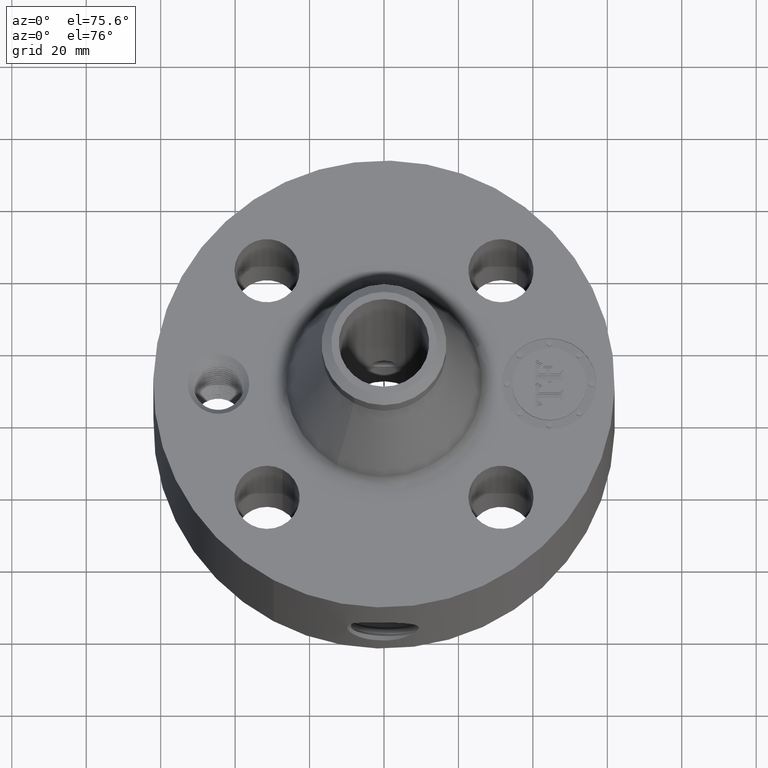
[diagram: clean part render]
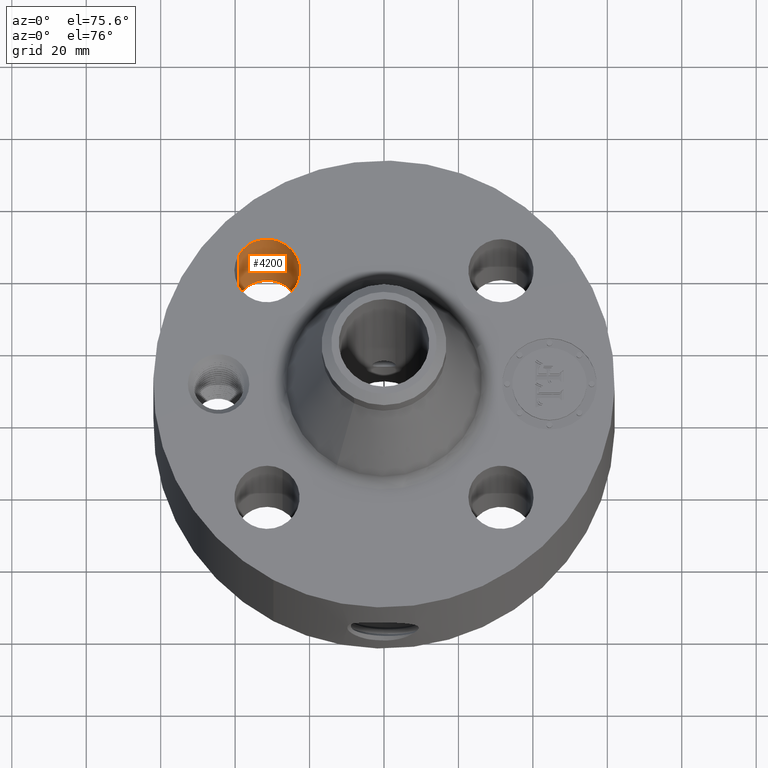
[diagram: same view with one face highlighted and labeled with its STEP entity id]
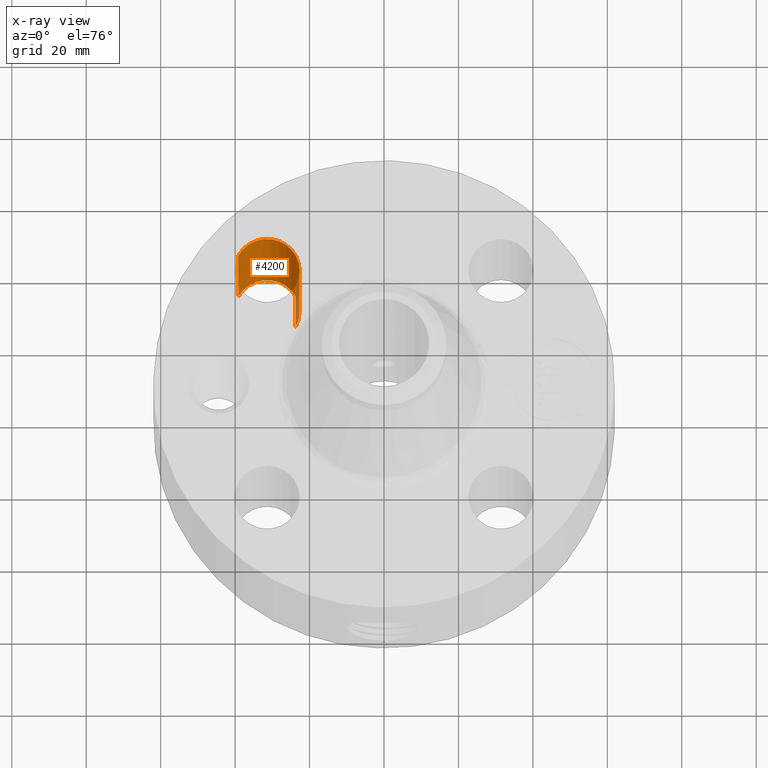
[diagram: x-ray of the same camera — body ghosted, the highlighted face saturated]
A machine part, auxiliary view. The second image highlights one B-rep face of the part: STEP entity #4200.
The next image is the same camera in x-ray: the body ghosted, the highlighted face saturated — about 5% of this face is hidden behind the body in this view.
In plain terms, the highlighted cylindrical surface (edge-blend (fillet) strip) has radius 8.763 mm, axis along (-0, 0, -1).
Its self-contained STEP definition (entity closure, byte-faithful):
#2994=AXIS2_PLACEMENT_3D('Circle Axis2P3D',#2992,#2993,$) ;
#4161=AXIS2_PLACEMENT_3D('Cylinder Axis2P3D',#4158,#4159,#4160) ;
#4191=AXIS2_PLACEMENT_3D('Circle Axis2P3D',#4189,#4190,$) ;
#2992=CARTESIAN_POINT('Axis2P3D Location',(-1.23743686708,1.23743686708,1.75000000001)) ;
#2996=CARTESIAN_POINT('Vertex',(-1.54020285093,1.4028386779,1.75000000001)) ;
#2998=CARTESIAN_POINT('Vertex',(-0.934670883228,1.07203505626,1.75000000001)) ;
#4158=CARTESIAN_POINT('Axis2P3D Location',(-1.23743686708,1.23743686708,1.74606299213)) ;
#4163=CARTESIAN_POINT('Line Origine',(-0.934670883228,1.07203505626,0.875000000003)) ;
#4167=CARTESIAN_POINT('Vertex',(-0.934670883228,1.07203505626,0.)) ;
#4174=CARTESIAN_POINT('Vertex',(-1.54020285093,1.4028386779,0.)) ;
#4177=CARTESIAN_POINT('Line Origine',(-1.54020285093,1.4028386779,0.875000000003)) ;
#4189=CARTESIAN_POINT('Axis2P3D Location',(-1.23743686708,1.23743686708,0.)) ;
#2993=DIRECTION('Axis2P3D Direction',(0.,0.,-0.0393700787402)) ;
#4159=DIRECTION('Axis2P3D Direction',(-0.,0.,-0.0393700787402)) ;
#4160=DIRECTION('Axis2P3D XDirection',(-0.0345504945626,0.0188750212049,0.)) ;
#4164=DIRECTION('Vector Direction',(0.,0.,-0.0393700787402)) ;
#4178=DIRECTION('Vector Direction',(0.,0.,-0.0393700787402)) ;
#4190=DIRECTION('Axis2P3D Direction',(-0.,0.,-0.0393700787402)) ;
#4165=VECTOR('Line Direction',#4164,0.0393700787402) ;
#4179=VECTOR('Line Direction',#4178,0.0393700787402) ;
#4195=ORIENTED_EDGE('',*,*,#4181,.F.) ;
#4196=ORIENTED_EDGE('',*,*,#4193,.T.) ;
#4197=ORIENTED_EDGE('',*,*,#4169,.T.) ;
#4198=ORIENTED_EDGE('',*,*,#3000,.F.) ;
#4200=ADVANCED_FACE('PartBody',(#4199),#4162,.F.) ;
#2995=CIRCLE('generated circle',#2994,0.345000000001) ;
#4192=CIRCLE('generated circle',#4191,0.345000000001) ;
#4162=CYLINDRICAL_SURFACE('generated cylinder',#4161,0.345000000001) ;
#3000=EDGE_CURVE('',#2997,#2999,#2995,.T.) ;
#4169=EDGE_CURVE('',#4168,#2999,#4166,.F.) ;
#4181=EDGE_CURVE('',#4175,#2997,#4180,.F.) ;
#4193=EDGE_CURVE('',#4175,#4168,#4192,.T.) ;
#4194=EDGE_LOOP('',(#4195,#4196,#4197,#4198)) ;
#4199=FACE_OUTER_BOUND('',#4194,.T.) ;
#4166=LINE('Line',#4163,#4165) ;
#4180=LINE('Line',#4177,#4179) ;
#2997=VERTEX_POINT('',#2996) ;
#2999=VERTEX_POINT('',#2998) ;
#4168=VERTEX_POINT('',#4167) ;
#4175=VERTEX_POINT('',#4174) ;